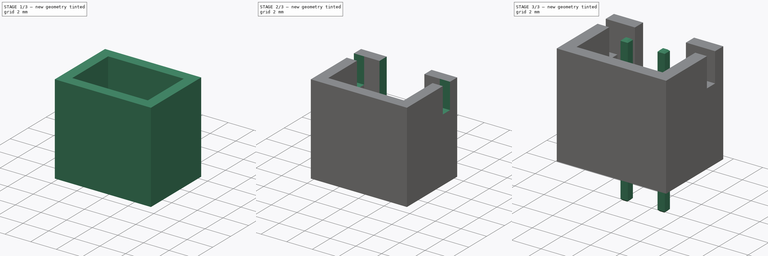
[diagram: build sequence overview — one tinted view per stage of 3, left to right]
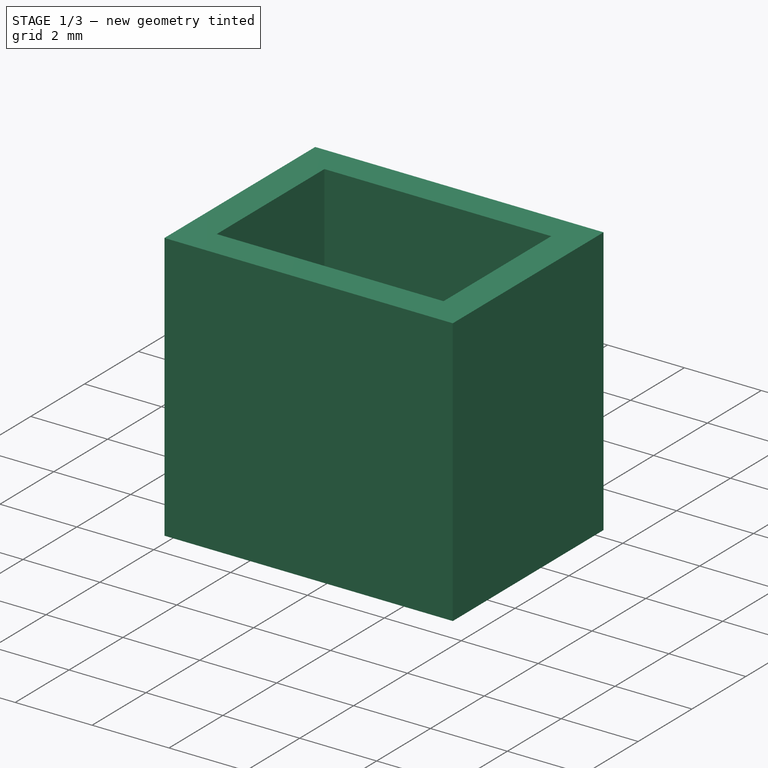
[diagram: stage 1 of 3 — iso view after this stage's code; geometry added in this stage tinted green]
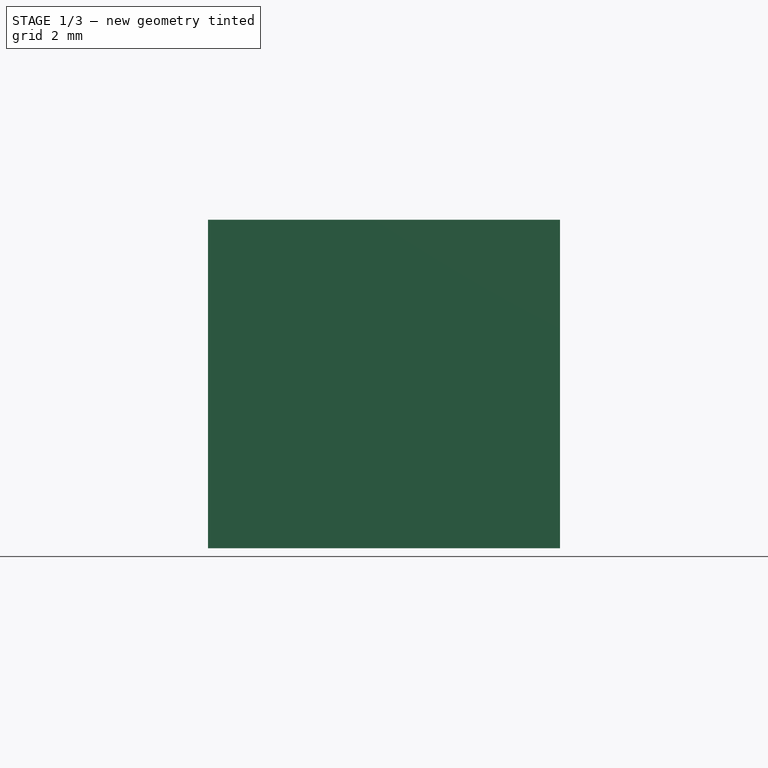
[diagram: stage 1 of 3 — front view after this stage's code; geometry added in this stage tinted green]
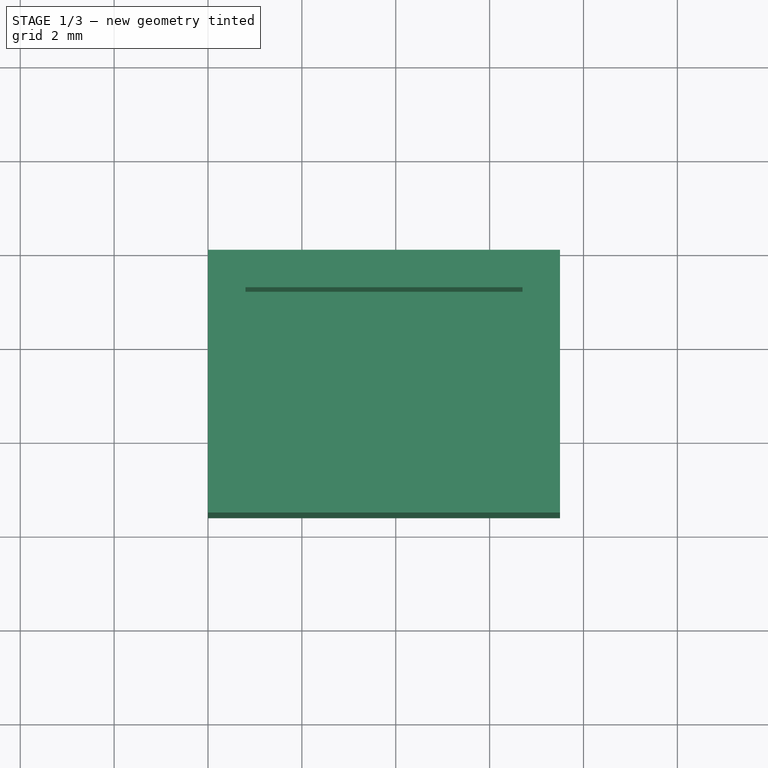
[diagram: stage 1 of 3 — top view after this stage's code; geometry added in this stage tinted green]
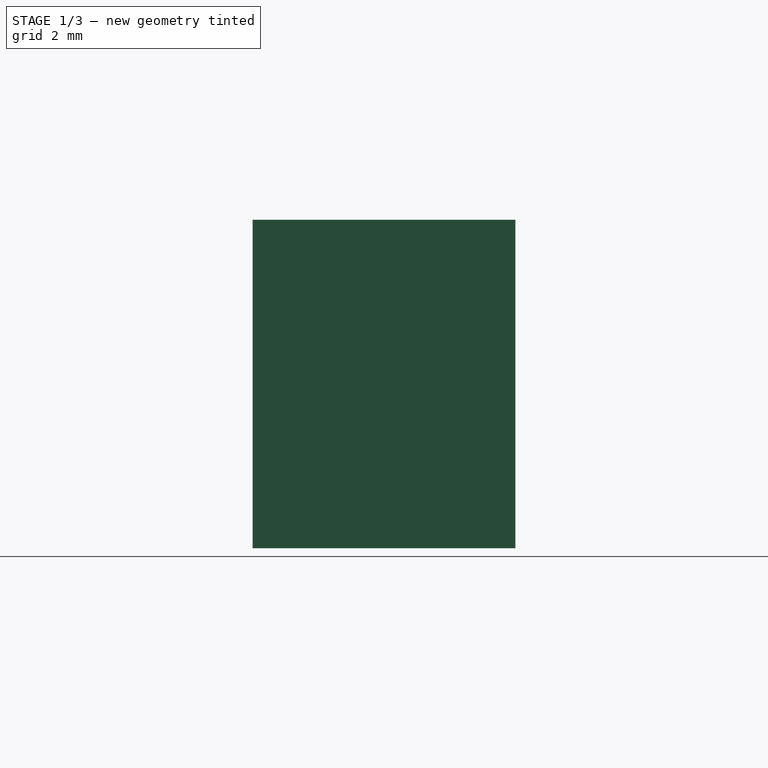
[diagram: stage 1 of 3 — right view after this stage's code; geometry added in this stage tinted green]
FCSTD DOCUMENT  (FreeCAD 0.14R3702 (Git))
Label: housing-2-54mm-2p
License: CC-BY 3.0
LicenseURL: http://creativecommons.org/licenses/by/3.0/
objects: Sketcher::SketchObject×5, PartDesign::Pocket×3, PartDesign::Pad×2, PartDesign::Chamfer×1
note: 16 computed .brp shape members not serialized (recipe doc carries the construction recipe); baked Part::Feature solids carry a one-line shape summary decoded from their .brp

FEATURE [Sketcher::SketchObject] Sketch
  sketch-geometry (4):
    g0: LineSegment StartX=0 StartY=0 StartZ=0 EndX=7.5 EndY=0 EndZ=0
    g1: LineSegment StartX=7.5 StartY=0 StartZ=0 EndX=7.5 EndY=-5.6 EndZ=0
    g2: LineSegment StartX=7.5 StartY=-5.6 StartZ=0 EndX=0 EndY=-5.6 EndZ=0
    g3: LineSegment StartX=0 StartY=-5.6 StartZ=0 EndX=0 EndY=0 EndZ=0
  constraints (11):
    c: Coincident(g0,g1)
    c: Coincident(g1,g2)
    c: Coincident(g2,g3)
    c: Coincident(g3,g0)
    c: Horizontal(g0)
    c: Horizontal(g2)
    c: Vertical(g1)
    c: Vertical(g3)
    c: Coincident(g0,g-1)
    c: DistanceX(g-1,g0) = 7.5
    c: DistanceY(g0,g1) = -5.6
FEATURE [PartDesign::Pad] Pad
  Length = 7
  Length2 = 100
  Sketch = -> Sketch
  Type = 0
FEATURE [Sketcher::SketchObject] Sketch001
  ExternalGeometry = -> [Pad]
  Placement = pos=(0,0,7) rot=(0,0,1;0rad)
  Support = -> Pad [Face6]
  sketch-geometry (4):
    g0: LineSegment StartX=6.7 StartY=-4.8 StartZ=0 EndX=0.8 EndY=-4.8 EndZ=0
    g1: LineSegment StartX=0.8 StartY=-4.8 StartZ=0 EndX=0.8 EndY=-0.8 EndZ=0
    g2: LineSegment StartX=0.8 StartY=-0.8 StartZ=0 EndX=6.7 EndY=-0.8 EndZ=0
    g3: LineSegment StartX=6.7 StartY=-0.8 StartZ=0 EndX=6.7 EndY=-4.8 EndZ=0
  constraints (12):
    c: Coincident(g0,g1)
    c: Coincident(g1,g2)
    c: Coincident(g2,g3)
    c: Coincident(g3,g0)
    c: Horizontal(g0)
    c: Horizontal(g2)
    c: Vertical(g1)
    c: Vertical(g3)
    c: DistanceX(g-1,g1) = 0.8
    c: DistanceX(g2,g-3) = 0.8
    c: DistanceY(g0,g-3) = -0.8
    c: DistanceY(g2,g-3) = 0.8
FEATURE [PartDesign::Pocket] Pocket
  Length = 5.5
  Sketch = -> Sketch001
  Type = 0
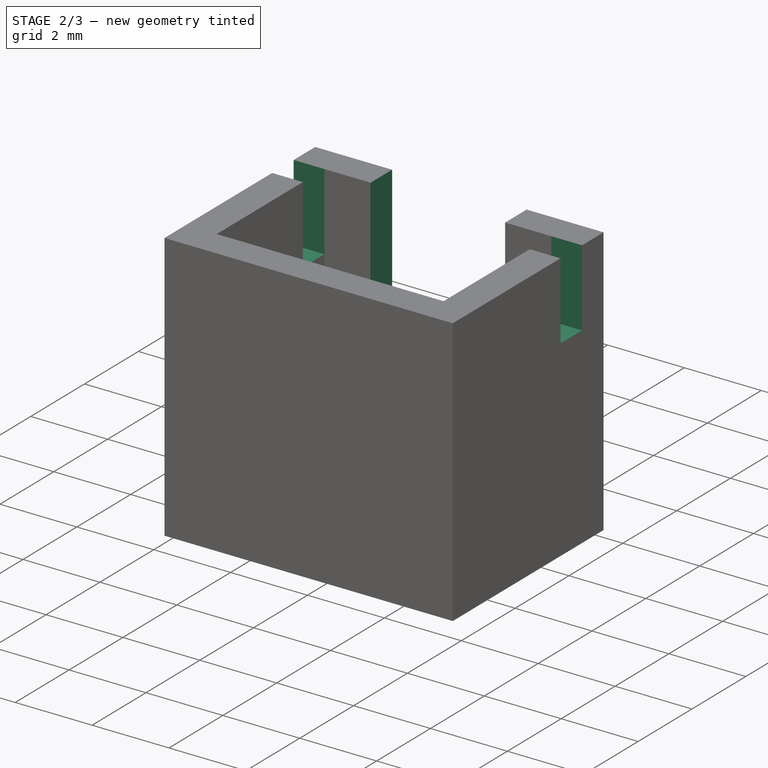
[diagram: stage 2 of 3 — iso view after this stage's code; geometry added in this stage tinted green]
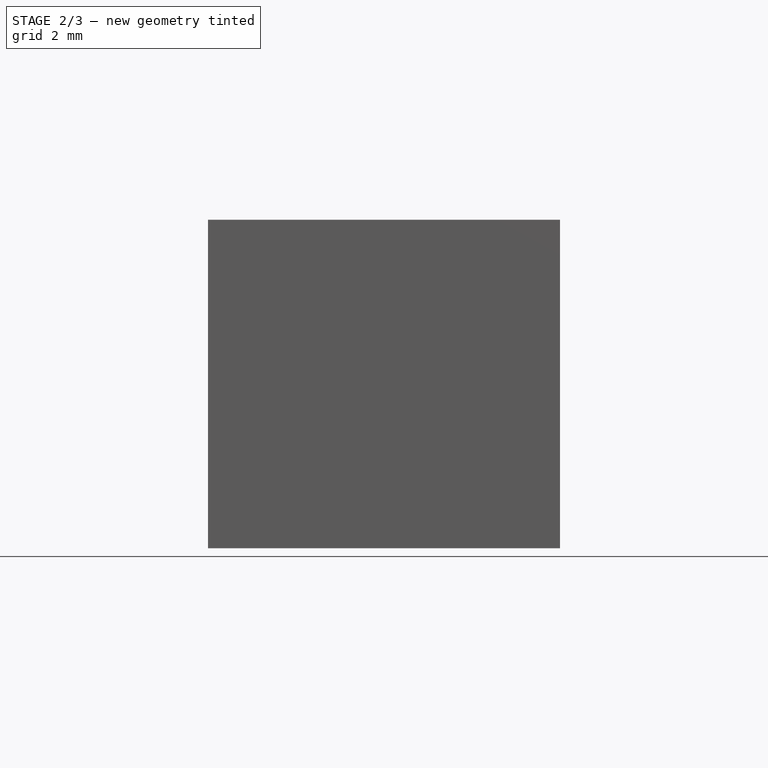
[diagram: stage 2 of 3 — front view after this stage's code; geometry added in this stage tinted green]
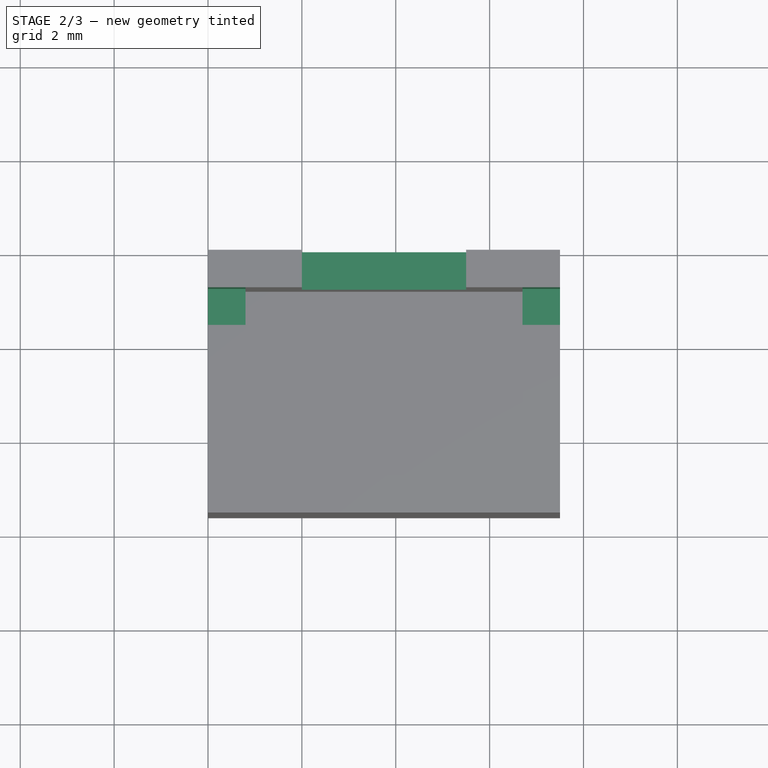
[diagram: stage 2 of 3 — top view after this stage's code; geometry added in this stage tinted green]
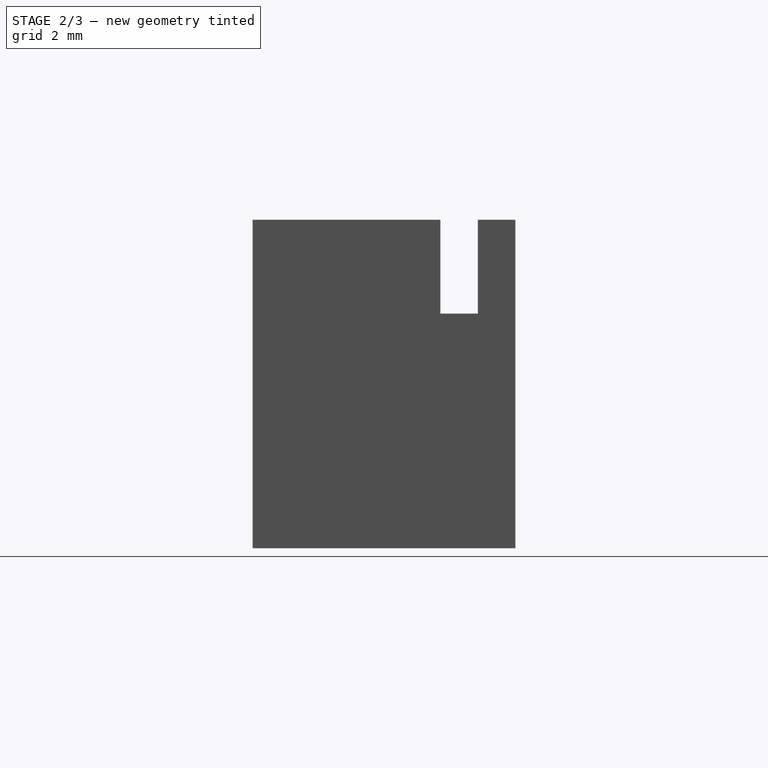
[diagram: stage 2 of 3 — right view after this stage's code; geometry added in this stage tinted green]
FEATURE [Sketcher::SketchObject] Sketch002
  ExternalGeometry = -> [Pocket]
  Placement = pos=(0,0,7) rot=(0,0,1;0rad)
  Support = -> Pocket [Face5]
  sketch-geometry (4):
    g0: LineSegment StartX=0 StartY=-0.8 StartZ=0 EndX=7.5 EndY=-0.8 EndZ=0
    g1: LineSegment StartX=7.5 StartY=-0.8 StartZ=0 EndX=7.5 EndY=-1.6 EndZ=0
    g2: LineSegment StartX=7.5 StartY=-1.6 StartZ=0 EndX=0 EndY=-1.6 EndZ=0
    g3: LineSegment StartX=0 StartY=-1.6 StartZ=0 EndX=0 EndY=-0.8 EndZ=0
  constraints (12):
    c: Coincident(g0,g1)
    c: Coincident(g1,g2)
    c: Coincident(g2,g3)
    c: Coincident(g3,g0)
    c: Horizontal(g0)
    c: Horizontal(g2)
    c: Vertical(g1)
    c: Vertical(g3)
    c: PointOnObject(g0,g-2)
    c: DistanceY(g-1,g0) = -0.8
    c: PointOnObject(g0,g-3)
    c: DistanceY(g0,g2) = -0.8
FEATURE [PartDesign::Pocket] Pocket001
  Length = 2
  Sketch = -> Sketch002
  Type = 0
FEATURE [Sketcher::SketchObject] Sketch003
  Placement = pos=(0,0,7) rot=(0,0,1;0rad)
  Support = -> Pocket001 [Face5]
  sketch-geometry (4):
    g0: LineSegment StartX=2 StartY=0 StartZ=0 EndX=5.5 EndY=0 EndZ=0
    g1: LineSegment StartX=5.5 StartY=0 StartZ=0 EndX=5.5 EndY=-0.8 EndZ=0
    g2: LineSegment StartX=5.5 StartY=-0.8 StartZ=0 EndX=2 EndY=-0.8 EndZ=0
    g3: LineSegment StartX=2 StartY=-0.8 StartZ=0 EndX=2 EndY=0 EndZ=0
  constraints (12):
    c: Coincident(g0,g1)
    c: Coincident(g1,g2)
    c: Coincident(g2,g3)
    c: Coincident(g3,g0)
    c: Horizontal(g0)
    c: Horizontal(g2)
    c: Vertical(g1)
    c: Vertical(g3)
    c: PointOnObject(g0,g-1)
    c: DistanceY(g0,g2) = -0.8
    c: DistanceX(g-1,g0) = 2
    c: DistanceX(g0,g0) = -3.5
FEATURE [PartDesign::Pocket] Pocket002
  Length = 3
  Sketch = -> Sketch003
  Type = 0
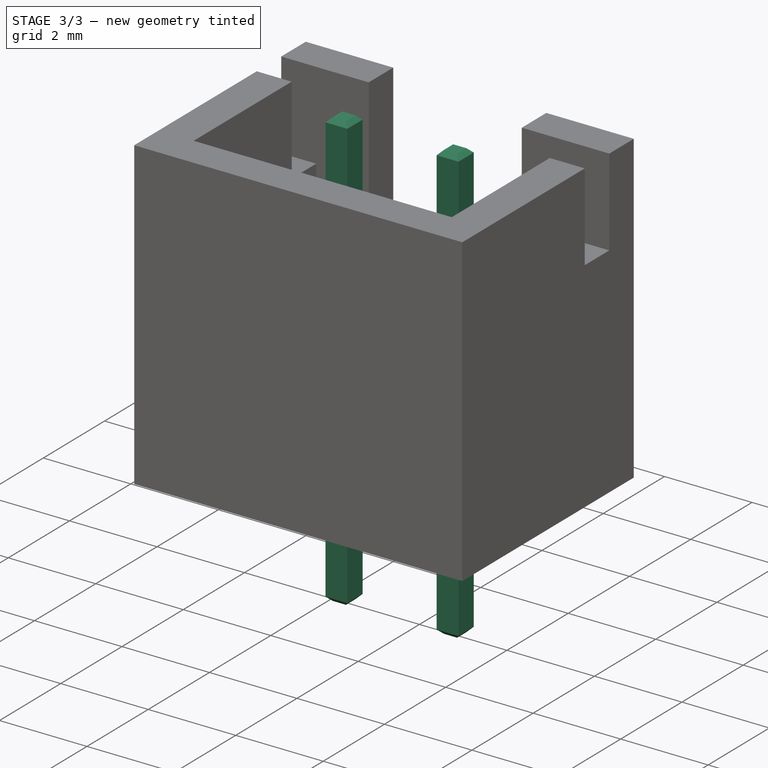
[diagram: stage 3 of 3 — iso view after this stage's code; geometry added in this stage tinted green]
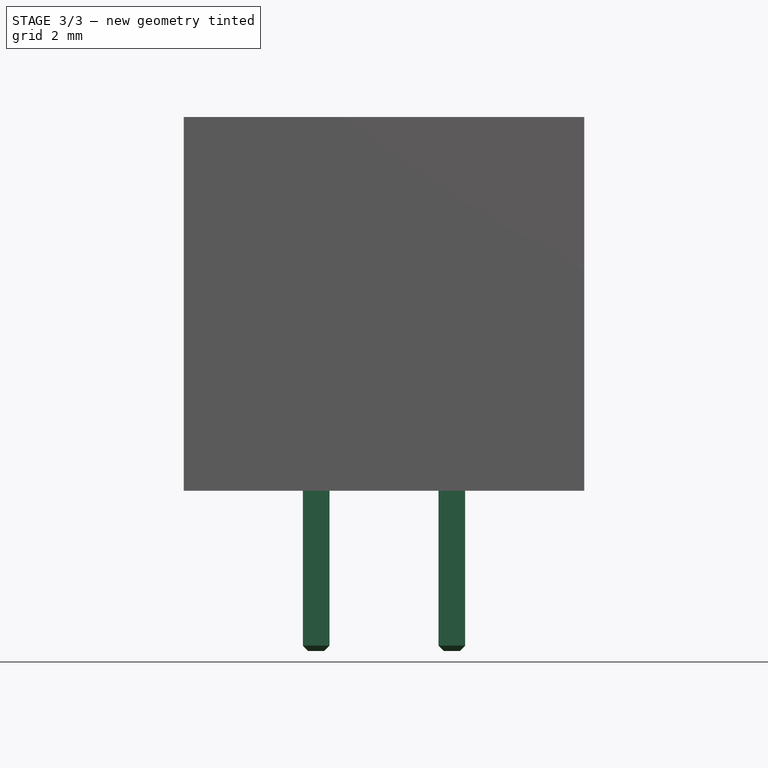
[diagram: stage 3 of 3 — front view after this stage's code; geometry added in this stage tinted green]
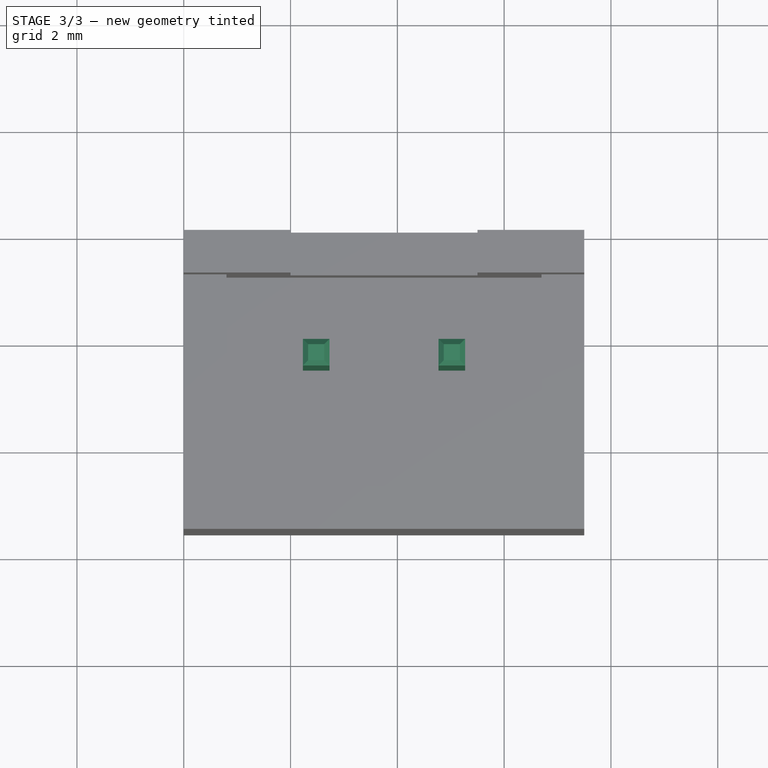
[diagram: stage 3 of 3 — top view after this stage's code; geometry added in this stage tinted green]
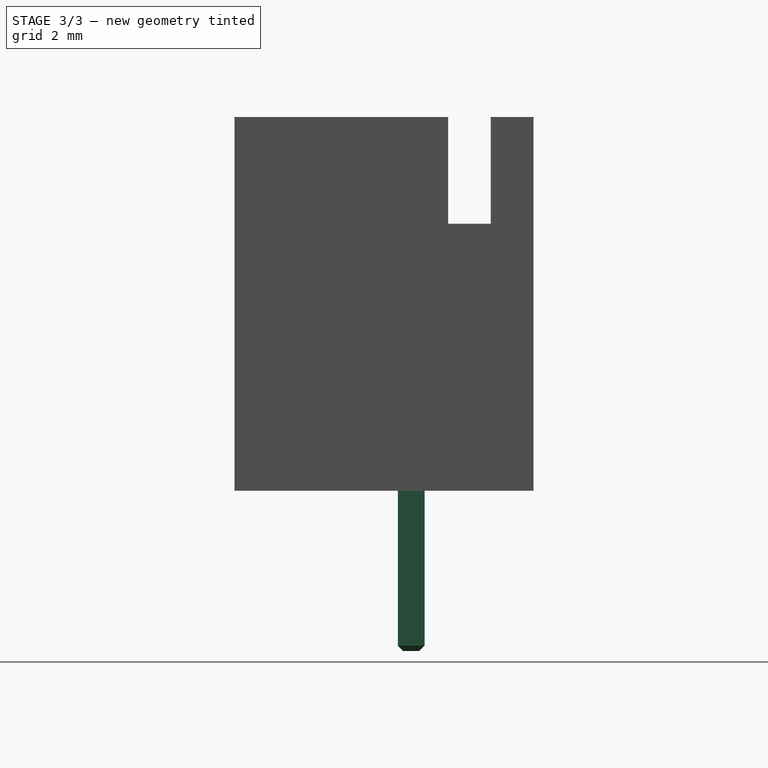
[diagram: stage 3 of 3 — right view after this stage's code; geometry added in this stage tinted green]
FEATURE [Sketcher::SketchObject] Sketch004
  ExternalGeometry = -> [Pocket002]
  Placement = pos=(0,0,1.5) rot=(0,0,1;0rad)
  Support = -> Pocket002 [Face24]
  sketch-geometry (13):
    g0: LineSegment StartX=2.23 StartY=-2.04 StartZ=0 EndX=2.73 EndY=-2.04 EndZ=0
    g1: LineSegment StartX=2.73 StartY=-2.04 StartZ=0 EndX=2.73 EndY=-2.54 EndZ=0
    g2: LineSegment StartX=2.73 StartY=-2.54 StartZ=0 EndX=2.23 EndY=-2.54 EndZ=0
    g3: LineSegment StartX=2.23 StartY=-2.54 StartZ=0 EndX=2.23 EndY=-2.04 EndZ=0
    g4: LineSegment StartX=4.77 StartY=-2.04 StartZ=0 EndX=5.27 EndY=-2.04 EndZ=0
    g5: LineSegment StartX=5.27 StartY=-2.04 StartZ=0 EndX=5.27 EndY=-2.54 EndZ=0
    g6: LineSegment StartX=5.27 StartY=-2.54 StartZ=0 EndX=4.77 EndY=-2.54 EndZ=0
    g7: LineSegment StartX=4.77 StartY=-2.54 StartZ=0 EndX=4.77 EndY=-2.04 EndZ=0
    g8: LineSegment [constr] StartX=2.73 StartY=-2.04 StartZ=0 EndX=4.77 EndY=-2.04 EndZ=0
    g9: LineSegment [constr] StartX=0 StartY=0 StartZ=0 EndX=7.5 EndY=-5.6 EndZ=0
    g10: GeomPoint [constr] X=3.75 Y=-2.8 Z=0
    g11: GeomPoint [constr] X=3.75 Y=-2.04 Z=0
    g12: LineSegment [constr] StartX=3.75 StartY=-2.04 StartZ=0 EndX=3.75 EndY=-2.8 EndZ=0
  constraints (34):
    c: Coincident(g0,g1)
    c: Coincident(g1,g2)
    c: Coincident(g2,g3)
    c: Coincident(g3,g0)
    c: Horizontal(g0)
    c: Horizontal(g2)
    c: Vertical(g1)
    c: Vertical(g3)
    c: Coincident(g4,g5)
    c: Coincident(g5,g6)
    c: Coincident(g6,g7)
    c: Coincident(g7,g4)
    c: Horizontal(g4)
    c: Horizontal(g6)
    c: Vertical(g5)
    c: Vertical(g7)
    c: Coincident(g8,g0)
    c: Coincident(g8,g4)
    c: Perpendicular(g8,g1)
    c: Equal(g1,g7)
    c: Equal(g0,g1)
    c: Equal(g7,g4)
    c: DistanceX(g0,g0) = 0.5
    c: DistanceX(g0,g4) = 2.54
    c: DistanceY(g-1,g2) = -2.54
    c: Coincident(g9,g-1)
    c: Coincident(g9,g-3)
    c: PointOnObject(g10,g9)
    c: Symmetric(g9,g-1,g10)
    c: PointOnObject(g11,g8)
    c: Symmetric(g0,g4,g11)
    c: Coincident(g12,g11)
    c: Coincident(g12,g10)
    c: Perpendicular(g12,g8)
FEATURE [PartDesign::Pad] Pad001
  Length = 5.5
  Length2 = 4.5
  Sketch = -> Sketch004
  Type = 4
FEATURE [PartDesign::Chamfer] Chamfer
  Base = -> Pad001 [Edge106,Edge104,Edge110,Edge108,Edge98,Edge96,Edge102,Edge100,Edge49,Edge46,Edge53,Edge51,Edge57,Edge54,Edge61,Edge59]
  Size = 0.1
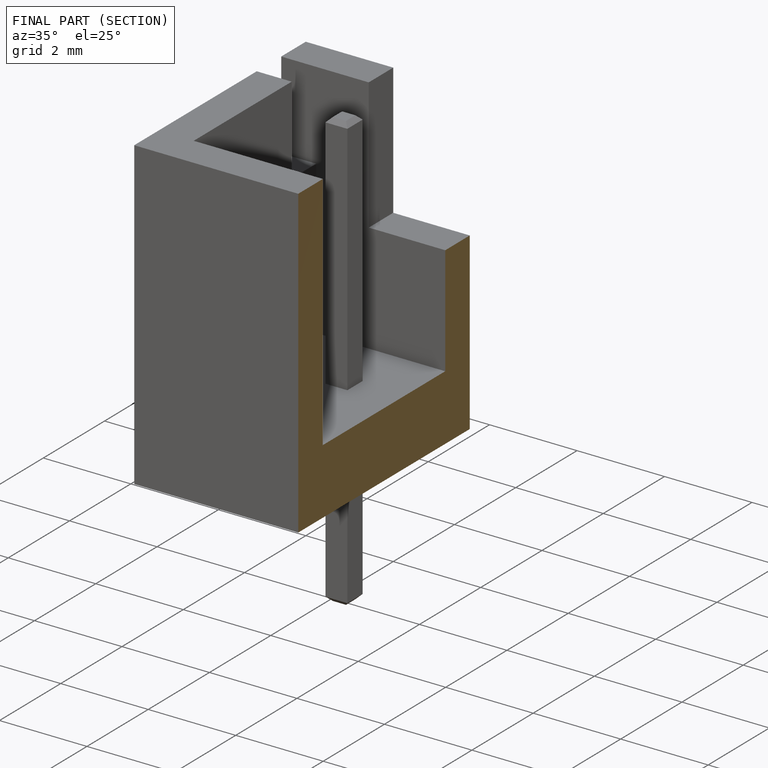
[diagram: finished part — half-section view (interior)]
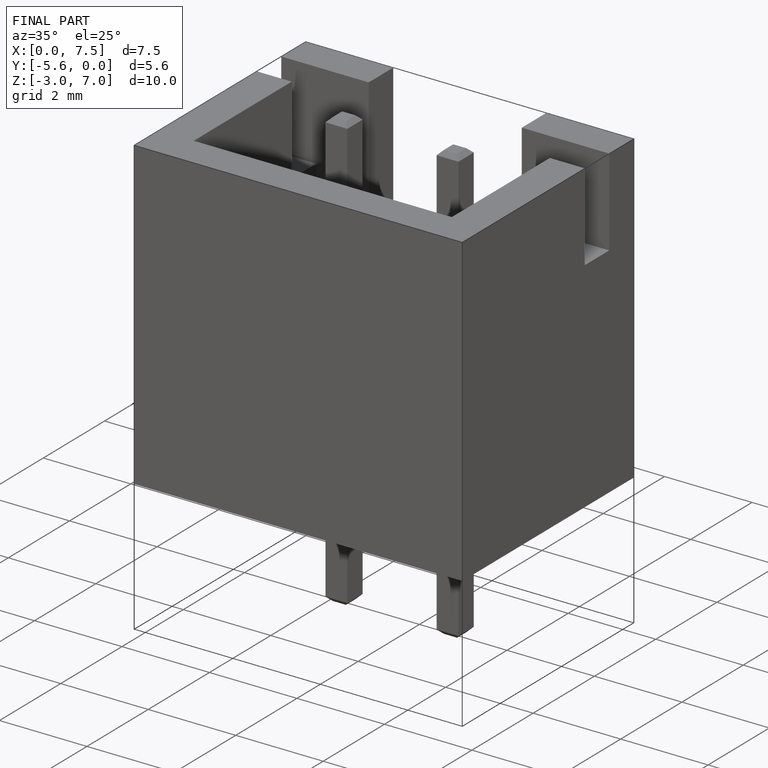
[diagram: finished part — iso view with bounding-box wireframe]
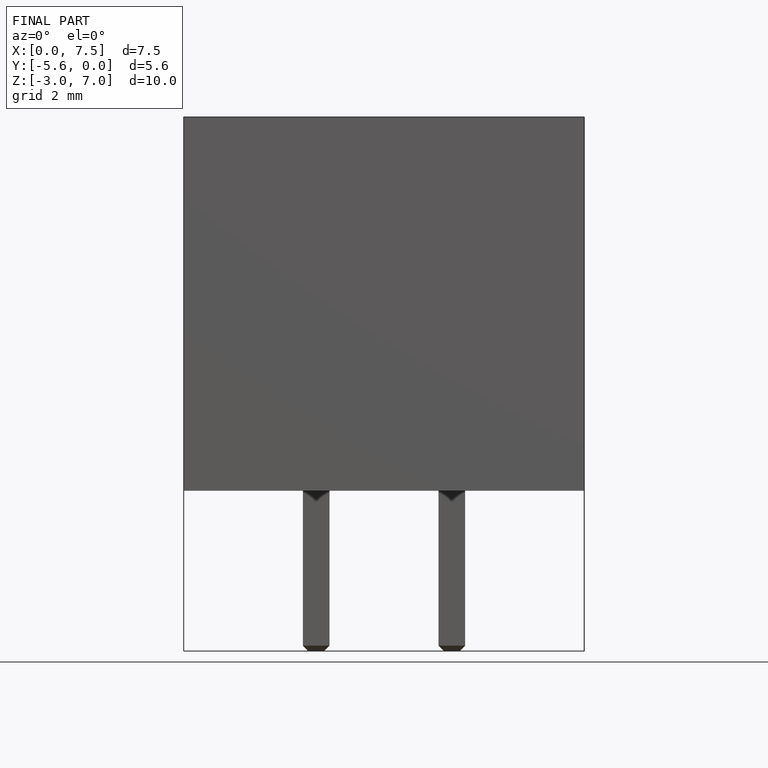
[diagram: finished part — front view with bounding-box wireframe]
